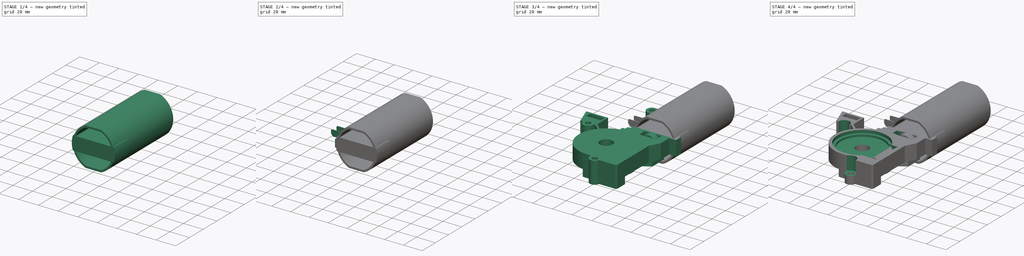
[diagram: build sequence overview — one tinted view per stage of 4, left to right]
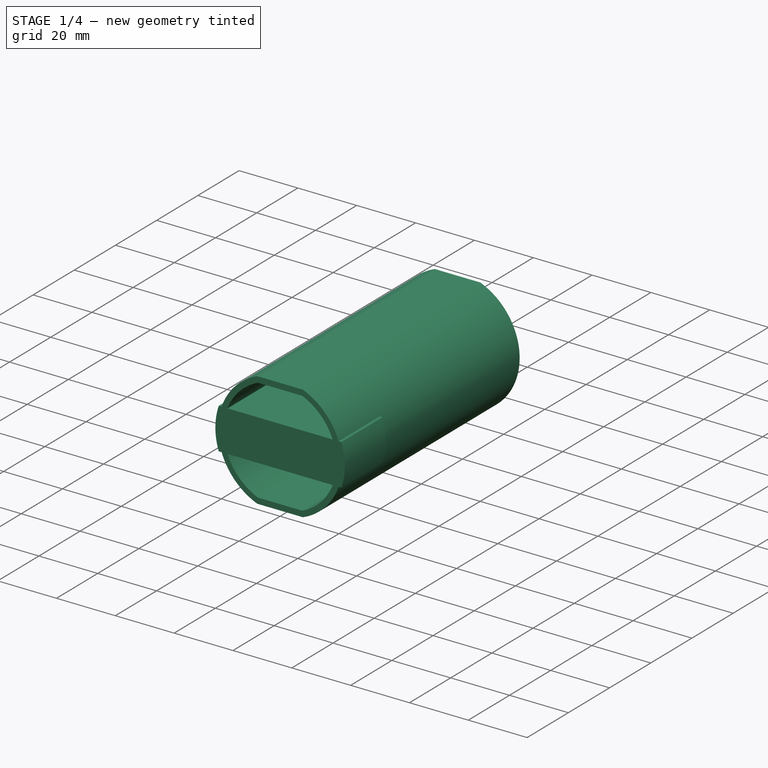
[diagram: stage 1 of 4 — iso view after this stage's code; geometry added in this stage tinted green]
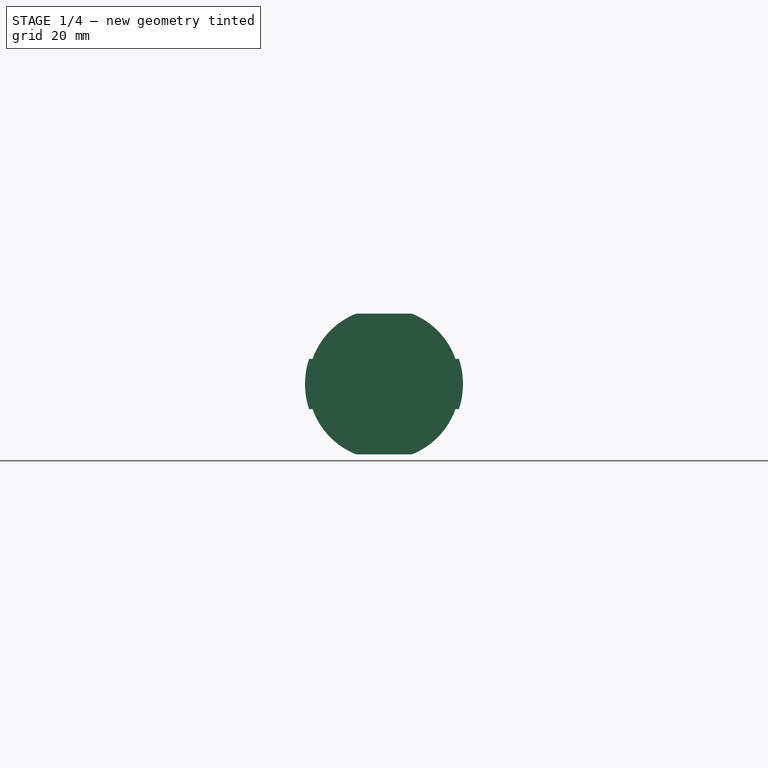
[diagram: stage 1 of 4 — front view after this stage's code; geometry added in this stage tinted green]
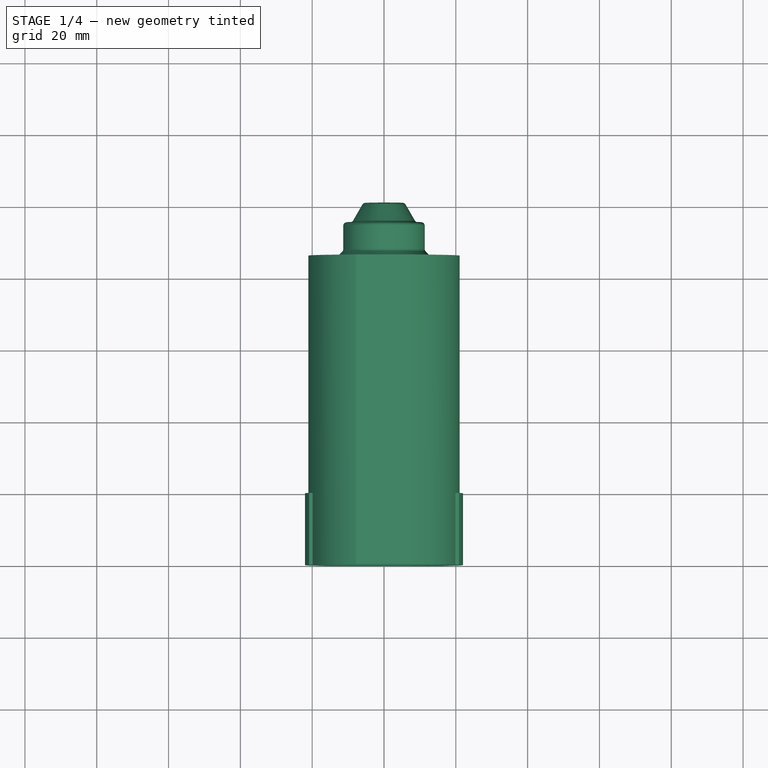
[diagram: stage 1 of 4 — top view after this stage's code; geometry added in this stage tinted green]
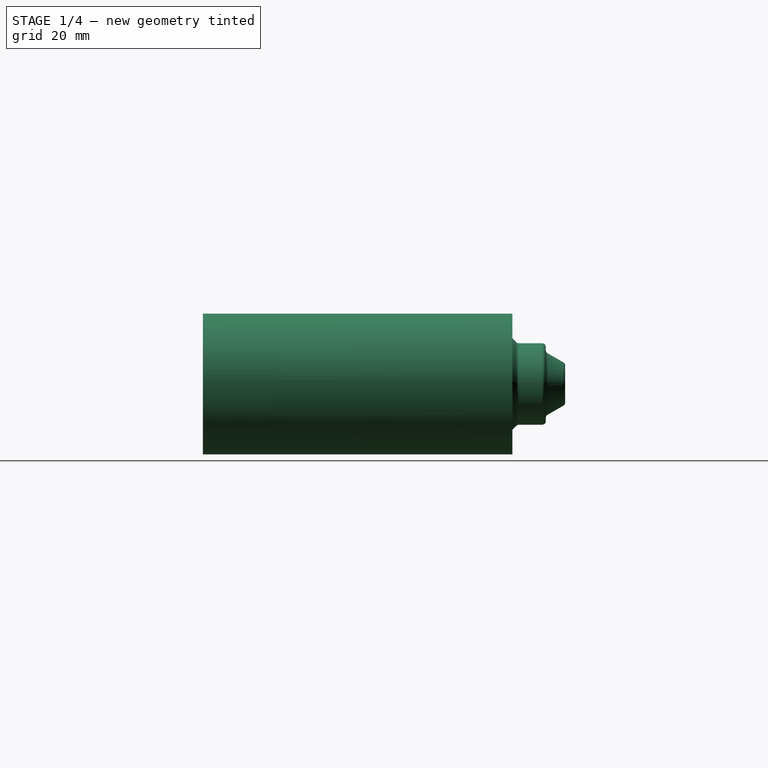
[diagram: stage 1 of 4 — right view after this stage's code; geometry added in this stage tinted green]
FCSTD DOCUMENT  (FreeCAD 0.20R28647 (Git))
Label: Motor-6N0-959-591
License: All rights reserved
LicenseURL: http://en.wikipedia.org/wiki/All_rights_reserved
objects: Sketcher::SketchObject×12, PartDesign::Pad×5, PartDesign::Pocket×5, PartDesign::Revolution×2, PartDesign::Body×2, PartDesign::LinearPattern×1
note: 39 computed .brp shape members not serialized (recipe doc carries the construction recipe); baked Part::Feature solids carry a one-line shape summary decoded from their .brp

FEATURE [Sketcher::SketchObject] Sketch
  FullyConstrained = true
  MapMode = 5
  Support = -> [XY_Plane]
  sketch-geometry (22):
    g0: LineSegment StartX=0 StartY=83.9 StartZ=0 EndX=-19.5 EndY=83.9 EndZ=0
    g1: LineSegment StartX=-19.5 StartY=83.9 StartZ=0 EndX=-19.5 EndY=84.9 EndZ=0
    g2: LineSegment StartX=-19.5 StartY=84.9 StartZ=0 EndX=-14.4713 EndY=84.9 EndZ=0
    g3: LineSegment StartX=-13.7642 StartY=85.1929 StartZ=0 EndX=-11.6429 EndY=87.3142 EndZ=0
    g4: LineSegment StartX=-11.35 StartY=88.0213 StartZ=0 EndX=-11.35 EndY=94.5 EndZ=0
    g5: LineSegment StartX=-10.35 StartY=95.5 StartZ=0 EndX=-9.44504 EndY=95.5 EndZ=0
    g6: LineSegment StartX=-8.57902 StartY=96 StartZ=0 EndX=-6.03868 EndY=100.4 EndZ=0
    g7: LineSegment StartX=-5.17265 StartY=100.9 StartZ=0 EndX=0 EndY=100.9 EndZ=0
    g8: LineSegment StartX=0 StartY=100.9 StartZ=0 EndX=0 EndY=83.9 EndZ=0
    g9: ArcOfCircle CenterX=-14.4713 CenterY=85.9 CenterZ=0 NormalX=0 NormalY=0 NormalZ=1 AngleXU=0 Radius=1 StartAngle=4.71239 EndAngle=5.49779
    g10: GeomPoint X=-14.0571 Y=84.9 Z=0
    g11: ArcOfCircle CenterX=-12.35 CenterY=88.0213 CenterZ=0 NormalX=0 NormalY=0 NormalZ=1 AngleXU=0 Radius=1 StartAngle=5.49779 EndAngle=6.28319
    g12: GeomPoint X=-11.35 Y=87.6071 Z=0
    g13: ArcOfCircle CenterX=-10.35 CenterY=94.5 CenterZ=0 NormalX=0 NormalY=0 NormalZ=1 AngleXU=0 Radius=1 StartAngle=1.5708 EndAngle=3.14159
    g14: GeomPoint X=-11.35 Y=95.5 Z=0
    g15: ArcOfCircle CenterX=-9.44504 CenterY=96.5 CenterZ=0 NormalX=0 NormalY=0 NormalZ=1 AngleXU=0 Radius=1 StartAngle=4.71239 EndAngle=5.75959
    g16: GeomPoint X=-8.86769 Y=95.5 Z=0
    g17: ArcOfCircle CenterX=-5.17265 CenterY=99.9 CenterZ=0 NormalX=0 NormalY=0 NormalZ=1 AngleXU=0 Radius=1 StartAngle=1.5708 EndAngle=2.61799
    g18: GeomPoint X=-5.75 Y=100.9 Z=0
    g19: GeomPoint X=19.5 Y=84.9 Z=0
    g20: GeomPoint X=11.35 Y=95.5 Z=0
    g21: GeomPoint X=5.75 Y=100.9 Z=0
  constraints (50):
    c: PointOnObject(g0,g-2)
    c: Horizontal(g0)
    c: Coincident(g0,g1)
    c: Vertical(g1)
    c: Coincident(g1,g2)
    c: Vertical(g4)
    c: Horizontal(g5)
    c: PointOnObject(g7,g-2)
    c: Horizontal(g7)
    c: Coincident(g7,g8)
    c: Coincident(g8,g0)
    c: Angle(g3) = 0.785398
    c: Angle(g6) = 1.0472
    c: Tangent(g2,g9) = -1.5708
    c: Tangent(g3,g9) = -1.5708
    c: PointOnObject(g12,g3)
    c: PointOnObject(g12,g4)
    c: Tangent(g3,g11) = -1.5708
    c: Tangent(g4,g11) = -1.5708
    c: PointOnObject(g14,g4)
    c: PointOnObject(g14,g5)
    c: Tangent(g4,g13) = 1.5708
    c: Tangent(g5,g13) = 1.5708
    c: PointOnObject(g16,g5)
    c: PointOnObject(g16,g6)
    c: Tangent(g5,g15) = -1.5708
    c: Tangent(g6,g15) = -1.5708
    c: PointOnObject(g18,g6)
    c: PointOnObject(g18,g7)
    c: Tangent(g6,g17) = 1.5708
    c: Tangent(g7,g17) = 1.5708
    c: Equal(g17,g15)
    c: Equal(g15,g13)
    c: Equal(g13,g11)
    c: Equal(g11,g9)
    c: Diameter(g13) = 2
    c: Symmetric(g21,g18,g-2)
    c: Symmetric(g14,g20,g-2)
    c: Symmetric(g19,g1,g-2)
    c: DistanceX(g1,g19) = 39
    c: DistanceX(g14,g20) = 22.7
    c: DistanceX(g18,g21) = 11.5
    c: DistanceY(g20,g21) = 5.4
    c: Distance(g9,g11) = 3
    c: DistanceY(g1,g1) = 1
    c: Horizontal(g2)
    c: PointOnObject(g10,g2)
    c: PointOnObject(g10,g3)
    c: DistanceY(g19,g20) = 10.6
    c: DistanceY(g19) = 84.9
FEATURE [PartDesign::Revolution] Revolution  label="Cap"
  Angle = 360
  Axis = (0,1,0)
  Base = (0,0,0)
  Profile = -> Sketch
  ReferenceAxis = -> Sketch [V_Axis]
FEATURE [Sketcher::SketchObject] Sketch001
  FullyConstrained = true
  MapMode = 5
  Placement = pos=(0,0,0) rot=(1,0,0;1.5708rad)
  Support = -> [XZ_Plane]
  sketch-geometry (8):
    g0: ArcOfCircle CenterX=0 CenterY=0 CenterZ=0 NormalX=0 NormalY=0 NormalZ=1 AngleXU=0 Radius=19.2 StartAngle=1.97537 EndAngle=4.30782
    g1: ArcOfCircle CenterX=0 CenterY=0 CenterZ=0 NormalX=0 NormalY=0 NormalZ=1 AngleXU=0 Radius=21.075 StartAngle=1.94715 EndAngle=4.33604
    g2: LineSegment StartX=-7.55761 StartY=17.65 StartZ=0 EndX=7.55761 EndY=17.65 EndZ=0
    g3: LineSegment StartX=-7.55761 StartY=-17.65 StartZ=0 EndX=7.55761 EndY=-17.65 EndZ=0
    g4: LineSegment StartX=-7.74568 StartY=-19.6 StartZ=0 EndX=7.74568 EndY=-19.6 EndZ=0
    g5: LineSegment StartX=-7.74568 StartY=19.6 StartZ=0 EndX=7.74568 EndY=19.6 EndZ=0
    g6: ArcOfCircle CenterX=0 CenterY=0 CenterZ=0 NormalX=0 NormalY=0 NormalZ=1 AngleXU=0 Radius=21.075 StartAngle=5.08874 EndAngle=7.47763
    g7: ArcOfCircle CenterX=0 CenterY=0 CenterZ=0 NormalX=0 NormalY=0 NormalZ=1 AngleXU=0 Radius=19.2 StartAngle=5.11696 EndAngle=7.44941
  constraints (24):
    c: Coincident(g0,g-1)
    c: Coincident(g1,g0)
    c: Horizontal(g2)
    c: Horizontal(g3)
    c: Horizontal(g4)
    c: Horizontal(g5)
    c: Equal(g5,g4)
    c: Equal(g3,g2)
    c: Coincident(g6,g5)
    c: Coincident(g1,g5)
    c: Coincident(g7,g2)
    c: Coincident(g0,g2)
    c: Equal(g1,g6)
    c: Coincident(g1,g4)
    c: Coincident(g6,g4)
    c: Coincident(g1,g6)
    c: Equal(g0,g7)
    c: Coincident(g0,g3)
    c: Coincident(g7,g3)
    c: Coincident(g0,g7)
    c: DistanceY(g2,g5) = 1.95
    c: Diameter(g6) = 42.15
    c: Diameter(g7) = 38.4
    c: DistanceY(g4,g5) = 39.2
FEATURE [Sketcher::SketchObject] Sketch002
  FullyConstrained = true
  MapMode = 5
  Placement = pos=(0,0,0) rot=(1,0,0;1.5708rad)
  Support = -> [XZ_Plane]
  sketch-geometry (4):
    g0: ArcOfCircle CenterX=0 CenterY=0 CenterZ=0 NormalX=0 NormalY=0 NormalZ=1 AngleXU=0 Radius=22 StartAngle=2.81778 EndAngle=3.4654
    g1: LineSegment StartX=-20.8567 StartY=7 StartZ=0 EndX=20.8567 EndY=7 EndZ=0
    g2: LineSegment StartX=-20.8567 StartY=-7 StartZ=0 EndX=20.8567 EndY=-7 EndZ=0
    g3: ArcOfCircle CenterX=0 CenterY=0 CenterZ=0 NormalX=0 NormalY=0 NormalZ=1 AngleXU=0 Radius=22 StartAngle=5.95937 EndAngle=6.607
  constraints (12):
    c: Coincident(g0,g-1)
    c: Horizontal(g1)
    c: Horizontal(g2)
    c: Coincident(g3,g1)
    c: Coincident(g0,g1)
    c: Equal(g0,g3)
    c: Coincident(g0,g2)
    c: Coincident(g3,g2)
    c: Coincident(g0,g3)
    c: Symmetric(g2,g1,g-1)
    c: DistanceY(g2,g1) = 14
    c: Diameter(g3) = 44
FEATURE [Sketcher::SketchObject] Sketch003
  FullyConstrained = true
  MapMode = 5
  Support = -> [XY_Plane]
  sketch-geometry (4):
    g0: LineSegment StartX=-28 StartY=23.5 StartZ=0 EndX=-18 EndY=23.5 EndZ=0
    g1: LineSegment StartX=-18 StartY=23.5 StartZ=0 EndX=-18 EndY=7.5 EndZ=0
    g2: LineSegment StartX=-18 StartY=7.5 StartZ=0 EndX=-28 EndY=7.5 EndZ=0
    g3: LineSegment StartX=-28 StartY=7.5 StartZ=0 EndX=-28 EndY=23.5 EndZ=0
  constraints (12):
    c: Coincident(g0,g1)
    c: Coincident(g1,g2)
    c: Coincident(g2,g3)
    c: Coincident(g3,g0)
    c: Horizontal(g0)
    c: Horizontal(g2)
    c: Vertical(g1)
    c: Vertical(g3)
    c: DistanceY(g1) = 7.5
    c: DistanceY(g1,g1) = 16
    c: DistanceX(g2) = -28
    c: DistanceX(g2,g2) = 10
FEATURE [PartDesign::Pad] Pad  label="Hull"
  BaseFeature = -> Revolution
  Direction = (0,-1,2e-16)
  Length = 86.2
  Length2 = 10
  Profile = -> Sketch001
  ReferenceAxis = -> Sketch001 [N_Axis]
  Reversed = true
  Type = 0
FEATURE [PartDesign::Pad] Pad001  label="Brush-Covers"
  BaseFeature = -> Pad
  Direction = (0,-1,2e-16)
  Length = 20
  Length2 = 10
  Profile = -> Sketch002
  ReferenceAxis = -> Sketch002 [N_Axis]
  Reversed = true
  Type = 0
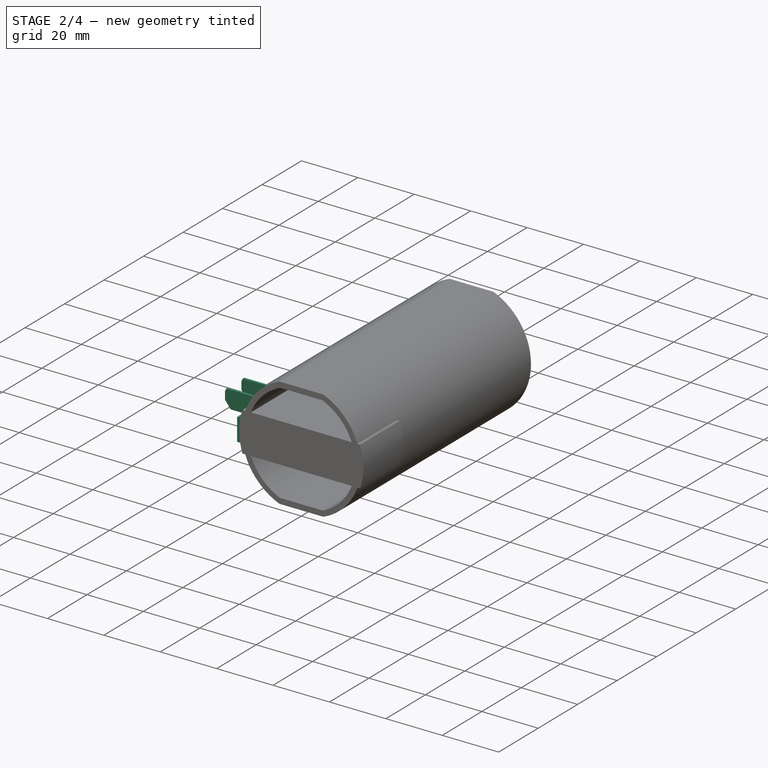
[diagram: stage 2 of 4 — iso view after this stage's code; geometry added in this stage tinted green]
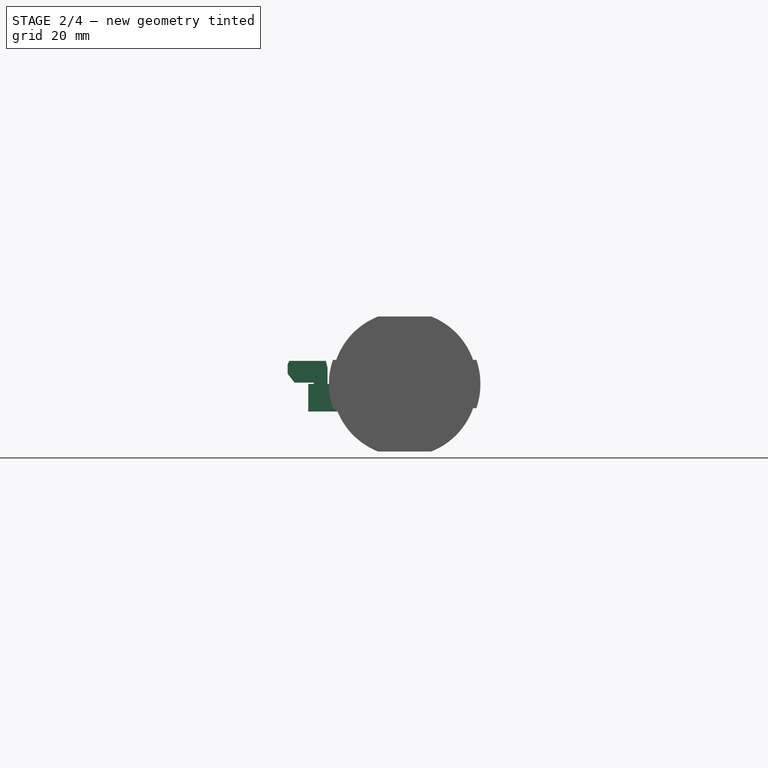
[diagram: stage 2 of 4 — front view after this stage's code; geometry added in this stage tinted green]
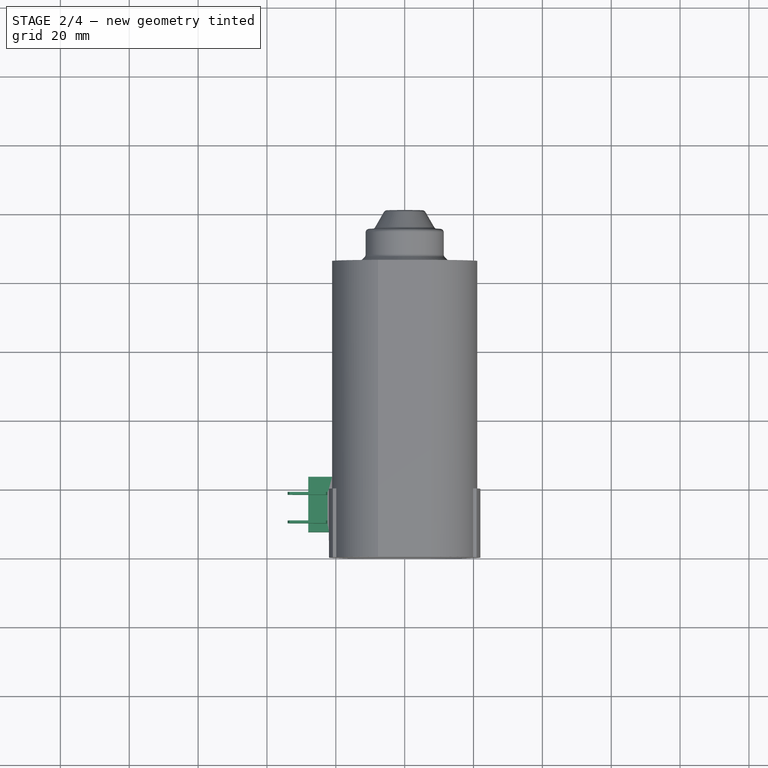
[diagram: stage 2 of 4 — top view after this stage's code; geometry added in this stage tinted green]
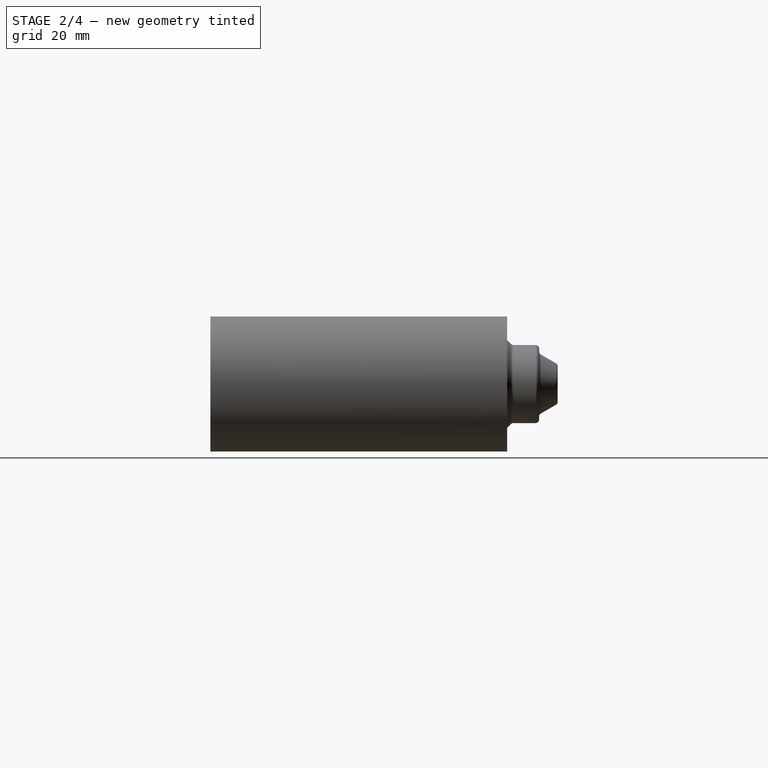
[diagram: stage 2 of 4 — right view after this stage's code; geometry added in this stage tinted green]
FEATURE [PartDesign::Pad] Pad002  label="Box"
  BaseFeature = -> Pad001
  Direction = (0,0,1)
  Length = 8
  Length2 = 10
  Profile = -> Sketch003
  ReferenceAxis = -> Sketch003 [N_Axis]
  Reversed = true
  Type = 0
FEATURE [Sketcher::SketchObject] Sketch004
  AttachmentOffset = pos=(0,0,-19) rot=(0,0,1;0rad)
  FullyConstrained = true
  MapMode = 5
  Placement = pos=(0,19,-4.2e-15) rot=(1,0,0;1.5708rad)
  Support = -> [XZ_Plane]
  sketch-geometry (12):
    g0: GeomPoint X=-34 Y=0.4 Z=0
    g1: LineSegment StartX=-22.4 StartY=-3.6 StartZ=0 EndX=-22.4 EndY=4.7 EndZ=0
    g2: LineSegment StartX=-22.4 StartY=4.7 StartZ=0 EndX=-22.9 EndY=6.7 EndZ=0
    g3: LineSegment StartX=-22.9 StartY=6.7 StartZ=0 EndX=-33.5 EndY=6.7 EndZ=0
    g4: LineSegment StartX=-33.5 StartY=6.7 StartZ=0 EndX=-34 EndY=5.7 EndZ=0
    g5: LineSegment StartX=-34 StartY=5.7 StartZ=0 EndX=-34 EndY=3 EndZ=0
    g6: LineSegment StartX=-34 StartY=3 StartZ=0 EndX=-32 EndY=0.4 EndZ=0
    g7: LineSegment StartX=-32 StartY=0.4 StartZ=0 EndX=-26.4 EndY=0.4 EndZ=0
    g8: LineSegment StartX=-26.4 StartY=0.4 StartZ=0 EndX=-26.4 EndY=-3.6 EndZ=0
    g9: LineSegment StartX=-26.4 StartY=-3.6 StartZ=0 EndX=-22.4 EndY=-3.6 EndZ=0
    g10: GeomPoint X=-34 Y=6.7 Z=0
    g11: GeomPoint X=-22.4 Y=6.7 Z=0
  constraints (33):
    c: Vertical(g1)
    c: Coincident(g1,g2)
    c: Coincident(g2,g3)
    c: Horizontal(g3)
    c: Coincident(g3,g4)
    c: Coincident(g4,g5)
    c: Vertical(g5)
    c: Coincident(g5,g6)
    c: Coincident(g6,g7)
    c: Horizontal(g7)
    c: Coincident(g7,g8)
    c: Vertical(g8)
    c: Coincident(g8,g9)
    c: Coincident(g9,g1)
    c: Horizontal(g9)
    c: PointOnObject(g11,g3)
    c: PointOnObject(g11,g1)
    c: PointOnObject(g10,g3)
    c: PointOnObject(g10,g5)
    c: PointOnObject(g0,g5)
    c: PointOnObject(g0,g7)
    c: DistanceX(g10,g11) = 11.6
    c: DistanceY(g0,g10) = 6.3
    c: DistanceX(g2,g11) = 0.5
    c: DistanceY(g1,g11) = 2
    c: DistanceX(g10,g3) = 0.5
    c: DistanceY(g4,g10) = 1
    c: DistanceX(g0,g6) = 2
    c: DistanceY(g5) = 3
    c: DistanceX(g10) = -34
    c: DistanceY(g10) = 6.7
    c: DistanceX(g9,g9) = 4
    c: Equal(g9,g8)
FEATURE [PartDesign::Pad] Pad003  label="Tab"
  BaseFeature = -> Pad002
  Direction = (0,-1,2e-16)
  Length = 0.8
  Length2 = 10
  Profile = -> Sketch004
  ReferenceAxis = -> Sketch004 [N_Axis]
  Type = 0
FEATURE [PartDesign::LinearPattern] LinearPattern  label="Connectors"
  BaseFeature = -> Pad003
  Direction = -> Sketch004 [N_Axis]
  Length = 8.3
  Occurrences = 2
  Originals = -> [Pad003]
  Overlap = 0
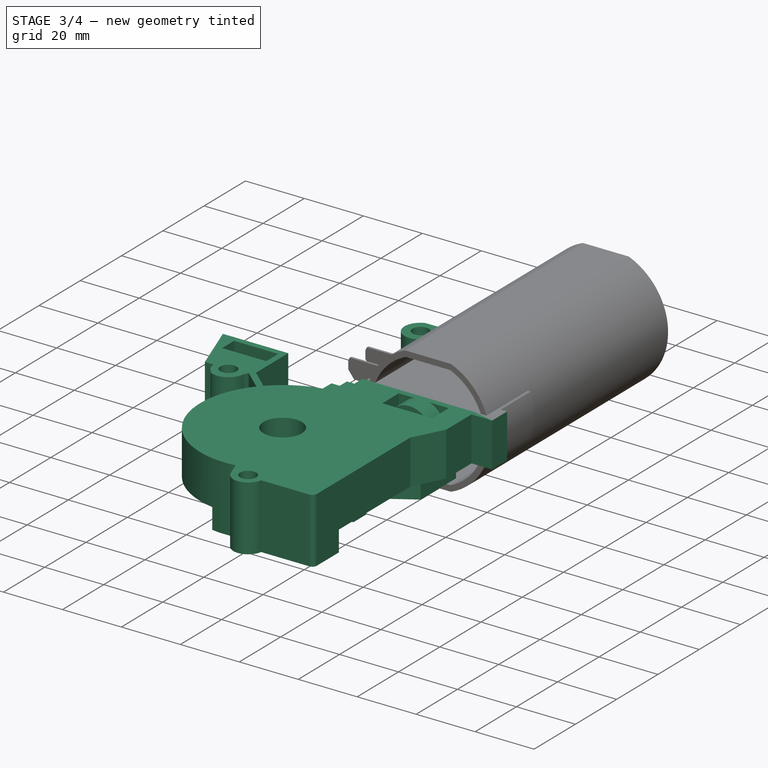
[diagram: stage 3 of 4 — iso view after this stage's code; geometry added in this stage tinted green]
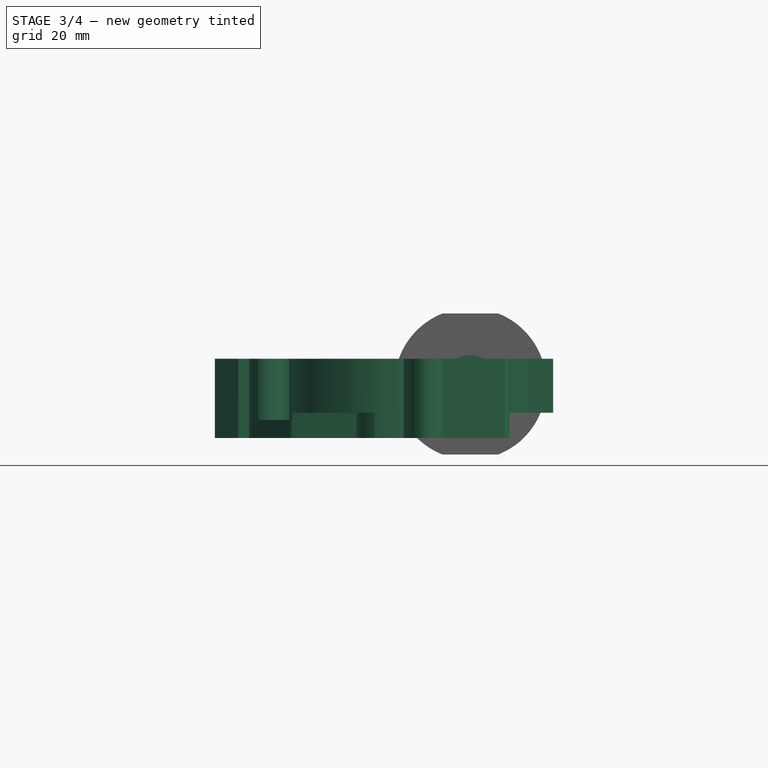
[diagram: stage 3 of 4 — front view after this stage's code; geometry added in this stage tinted green]
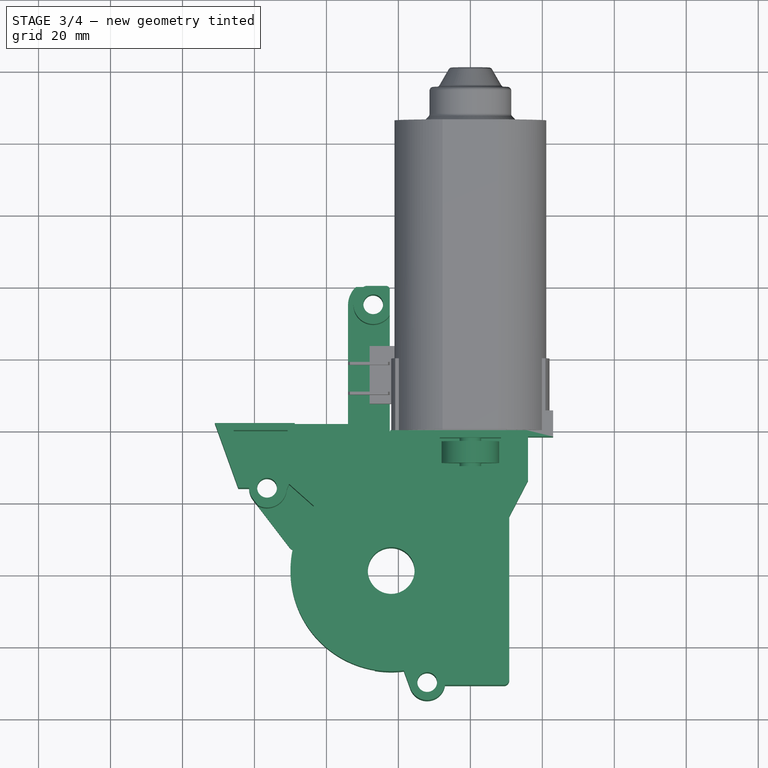
[diagram: stage 3 of 4 — top view after this stage's code; geometry added in this stage tinted green]
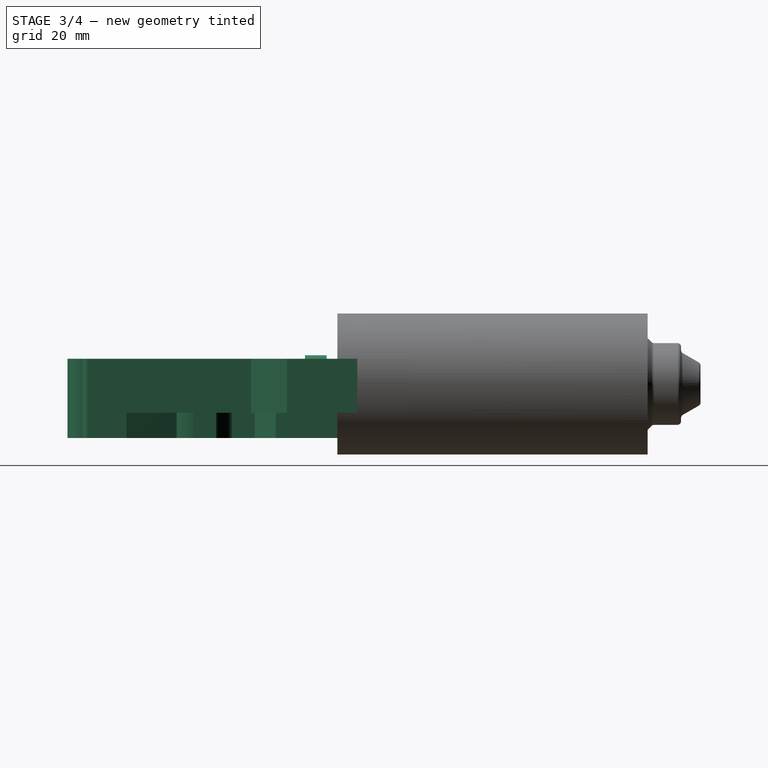
[diagram: stage 3 of 4 — right view after this stage's code; geometry added in this stage tinted green]
FEATURE [Sketcher::SketchObject] Sketch005
  FullyConstrained = true
  MapMode = 5
  Support = -> [XY_Plane001]
  sketch-geometry (33):
    g0: LineSegment StartX=15.7 StartY=0 StartZ=0 EndX=15.7 EndY=5.5 EndZ=0
    g1: LineSegment StartX=15.7 StartY=5.5 StartZ=0 EndX=23 EndY=5.5 EndZ=0
    g2: LineSegment StartX=23 StartY=5.5 StartZ=0 EndX=23 EndY=-1.8 EndZ=0
    g3: LineSegment StartX=23 StartY=-1.8 StartZ=0 EndX=16 EndY=-1.8 EndZ=0
    g4: LineSegment StartX=16 StartY=-1.8 StartZ=0 EndX=16 EndY=-14 EndZ=0
    g5: LineSegment StartX=16 StartY=-14 StartZ=0 EndX=10.8 EndY=-24 EndZ=0
    g6: LineSegment StartX=10.8 StartY=-24 StartZ=0 EndX=10.8 EndY=-69.3 EndZ=0
    g7: LineSegment StartX=9.3 StartY=-70.8 StartZ=0 EndX=-7.06441 EndY=-70.8 EndZ=0
    g8: ArcOfCircle CenterX=-22 CenterY=-39 CenterZ=0 NormalX=0 NormalY=0 NormalZ=1 AngleXU=0 Radius=28 StartAngle=2.92563 EndAngle=4.83772
    g9: LineSegment StartX=-50.1793 StartY=-32.4569 StartZ=0 EndX=-60.4674 EndY=-19.0429 EndZ=0
    g10: LineSegment StartX=-64.5 StartY=-16 StartZ=0 EndX=-71 EndY=2 EndZ=0
    g11: LineSegment StartX=-71 StartY=2 StartZ=0 EndX=-34 EndY=2 EndZ=0
    g12: LineSegment StartX=-34 StartY=2 StartZ=0 EndX=-34 EndY=35 EndZ=0
    g13: LineSegment StartX=-22.4 StartY=39.1 StartZ=0 EndX=-22.4 EndY=0 EndZ=0
    g14: LineSegment StartX=-22.4 StartY=0 StartZ=0 EndX=15.7 EndY=0 EndZ=0
    g15: GeomPoint X=-27 Y=35 Z=0
    g16: GeomPoint X=-56.5 Y=-16 Z=0
    g17: GeomPoint X=-12 Y=-70 Z=0
    g18: ArcOfCircle CenterX=-27 CenterY=35 CenterZ=0 NormalX=0 NormalY=0 NormalZ=1 AngleXU=0 Radius=7 StartAngle=2.32536 EndAngle=3.14159
    g19: LineSegment StartX=-31.7948 StartY=40.1 StartZ=0 EndX=-23.4 EndY=40.1 EndZ=0
    g20: ArcOfCircle CenterX=-23.4 CenterY=39.1 CenterZ=0 NormalX=0 NormalY=0 NormalZ=1 AngleXU=0 Radius=1 StartAngle=-2.7e-15 EndAngle=1.5708
    g21: GeomPoint X=-22.4 Y=40.1 Z=0
    g22: Circle CenterX=-27 CenterY=35 CenterZ=0 NormalX=0 NormalY=0 NormalZ=1 AngleXU=0 Radius=2.75
    g23: Circle CenterX=-56.5 CenterY=-16 CenterZ=0 NormalX=0 NormalY=0 NormalZ=1 AngleXU=0 Radius=2.75
    g24: Circle CenterX=-12 CenterY=-70 CenterZ=0 NormalX=0 NormalY=0 NormalZ=1 AngleXU=0 Radius=2.75
    g25: ArcOfCircle CenterX=-12 CenterY=-70 CenterZ=0 NormalX=0 NormalY=0 NormalZ=1 AngleXU=0 Radius=5 StartAngle=3.49196 EndAngle=6.12249
    g26: ArcOfCircle CenterX=9.3 CenterY=-69.3 CenterZ=0 NormalX=0 NormalY=0 NormalZ=1 AngleXU=0 Radius=1.5 StartAngle=4.71239 EndAngle=6.28319
    g27: GeomPoint X=10.8 Y=-70.8 Z=0
    g28: LineSegment StartX=-16.6962 StartY=-71.7162 StartZ=0 EndX=-18.5 EndY=-66.7804 EndZ=0
    g29: Circle CenterX=-22 CenterY=-39 CenterZ=0 NormalX=0 NormalY=0 NormalZ=1 AngleXU=0 Radius=6.5
    g30: ArcOfCircle CenterX=-56.5 CenterY=-16 CenterZ=0 NormalX=0 NormalY=0 NormalZ=1 AngleXU=0 Radius=5 StartAngle=3.14159 EndAngle=3.79587
    g31: LineSegment StartX=-61.5 StartY=-16 StartZ=0 EndX=-64.5 EndY=-16 EndZ=0
    g32: ArcOfCircle CenterX=-48.989 CenterY=-31.544 CenterZ=0 NormalX=0 NormalY=0 NormalZ=1 AngleXU=0 Radius=1.5 StartAngle=3.79587 EndAngle=4.46964
  constraints (88):
    c: PointOnObject(g0,g-1)
    c: Vertical(g0)
    c: Coincident(g0,g1)
    c: Horizontal(g1)
    c: Coincident(g1,g2)
    c: Vertical(g2)
    c: Coincident(g2,g3)
    c: Horizontal(g3)
    c: Coincident(g3,g4)
    c: Vertical(g4)
    c: Coincident(g4,g5)
    c: Coincident(g5,g6)
    c: Vertical(g6)
    c: Horizontal(g7)
    c: Coincident(g10,g11)
    c: Horizontal(g11)
    c: Coincident(g11,g12)
    c: Vertical(g12)
    c: PointOnObject(g13,g-1)
    c: Vertical(g13)
    c: Coincident(g13,g14)
    c: Coincident(g14,g0)
    c: DistanceX(g15) = -27
    c: DistanceY(g15) = 35
    c: Coincident(g18,g15)
    c: Coincident(g19,g18)
    c: Horizontal(g19)
    c: PointOnObject(g21,g13)
    c: PointOnObject(g21,g19)
    c: Tangent(g13,g20) = 1.5708
    c: Tangent(g19,g20) = 1.5708
    c: Coincident(g22,g18)
    c: Diameter(g22) = 5.5
    c: Diameter(g20) = 2
    c: DistanceX(g12,g13) = 11.6
    c: DistanceX(g12) = -34
    c: DistanceY(g18,g18) = 5.1
    c: DistanceY(g11) = 2
    c: Tangent(g18,g12) = 1.5708
    c: DistanceX(g16) = -56.5
    c: DistanceY(g16) = -16
    c: Distance(g16,g18) = 58.9173
    c: Coincident(g23,g16)
    c: Equal(g23,g22)
    c: DistanceX(g17) = -12
    c: Coincident(g24,g17)
    c: Equal(g24,g23)
    c: Coincident(g25,g24)
    c: Coincident(g25,g7)
    c: Distance(g24,g23) = 69.9732
    c: DistanceY(g24) = -70
    c: DistanceY(g8) = -39
    c: Diameter(g25) = 10
    c: DistanceY(g27) = -70.8
    c: DistanceX(g27) = 10.8
    c: PointOnObject(g27,g6)
    c: PointOnObject(g27,g7)
    c: Tangent(g6,g26) = 1.5708
    c: Tangent(g7,g26) = 1.5708
    c: Diameter(g26) = 3
    c: DistanceY(g5) = -24
    c: DistanceY(g5,g4) = 10
    c: DistanceX(g4) = 16
    c: DistanceX(g8) = -22
    c: Coincident(g28,g8)
    c: Tangent(g28,g25) = 1.5708
    c: Diameter(g8) = 56
    c: Coincident(g29,g8)
    c: Diameter(g29) = 13
    c: DistanceX(g10) = -71
    c: Coincident(g30,g23)
    c: Equal(g25,g30)
    c: Coincident(g31,g30)
    c: Coincident(g31,g10)
    c: PointOnObject(g23,g31)
    c: Horizontal(g31)
    c: DistanceX(g31,g31) = 3
    c: Coincident(g32,g8)
    c: Tangent(g32,g9) = 1.5708
    c: Tangent(g9,g30) = 1.5708
    c: Equal(g26,g32)
    c: PointOnObject(g32,g8)
    c: DistanceY(g8) = -33
    c: DistanceX(g8) = -18.5
    c: DistanceY(g2,g2) = 7.3
    c: Equal(g2,g1)
    c: DistanceX(g1) = 23
    c: DistanceY(g2) = -1.8
FEATURE [PartDesign::Pad] Pad004
  Direction = (0,0,1)
  Length = 7
  Length2 = 15
  Profile = -> Sketch005
  ReferenceAxis = -> Sketch005 [N_Axis]
  Type = 4
FEATURE [Sketcher::SketchObject] Sketch006
  AttachmentOffset = pos=(0,0,-8) rot=(0,0,1;0rad)
  ExternalGeometry = -> [Pad004]
  FullyConstrained = false
  MapMode = 5
  Placement = pos=(0,0,-8) rot=(0,0,1;0rad)
  Support = -> [XY_Plane001]
  sketch-geometry (40):
    g0: LineSegment StartX=9.5 StartY=7.19635 StartZ=0 EndX=9.5 EndY=-17.1308 EndZ=0
    g1: LineSegment StartX=9.5 StartY=-17.1308 StartZ=0 EndX=0 EndY=-23 EndZ=0
    g2: LineSegment StartX=0 StartY=-23 StartZ=0 EndX=-9.5 EndY=-17.1308 EndZ=0
    g3: LineSegment StartX=-9.5 StartY=-17.1308 StartZ=0 EndX=-9.5 EndY=0 EndZ=0
    g4: LineSegment StartX=-9.5 StartY=0 StartZ=0 EndX=-22 EndY=0 EndZ=0
    g5: LineSegment StartX=-22 StartY=0 StartZ=0 EndX=-22 EndY=-7.81023 EndZ=0
    g6: LineSegment StartX=-21 StartY=-15.3586 StartZ=0 EndX=-21 EndY=-29.402 EndZ=0
    g7: ArcOfCircle CenterX=-23.1483 CenterY=-11.8028 CenterZ=0 NormalX=0 NormalY=0 NormalZ=1 AngleXU=0 Radius=4.1544 StartAngle=5.25588 EndAngle=7.57392
    g8: ArcOfCircle CenterX=-22 CenterY=-39 CenterZ=0 NormalX=0 NormalY=0 NormalZ=1 AngleXU=0 Radius=9.65 StartAngle=0.0997359 EndAngle=1.46698
    g9: ArcOfCircle CenterX=-22 CenterY=-39 CenterZ=0 NormalX=0 NormalY=0 NormalZ=1 AngleXU=0 Radius=9.65 StartAngle=5.65237 EndAngle=6.17529
    g10: ArcOfCircle CenterX=-22 CenterY=-39 CenterZ=0 NormalX=0 NormalY=0 NormalZ=1 AngleXU=0 Radius=9.65 StartAngle=4.63073 EndAngle=5.4194
    g11: ArcOfCircle CenterX=-22 CenterY=-39 CenterZ=0 NormalX=0 NormalY=0 NormalZ=1 AngleXU=0 Radius=9.65 StartAngle=2.99879 EndAngle=4.38504
    g12: ArcOfCircle CenterX=-22 CenterY=-39 CenterZ=0 NormalX=0 NormalY=0 NormalZ=1 AngleXU=0 Radius=9.65 StartAngle=1.67461 EndAngle=2.45749
    g13: LineSegment StartX=-23 StartY=-29.402 StartZ=0 EndX=-23 EndY=-16.3237 EndZ=0
    g14: ArcOfCircle CenterX=-22 CenterY=-39 CenterZ=0 NormalX=0 NormalY=0 NormalZ=1 AngleXU=0 Radius=22.6983 StartAngle=1.61487 EndAngle=2.45749
    g15: LineSegment StartX=-39.5909 StartY=-24.6552 StartZ=0 EndX=-29.4786 EndY=-32.9014 EndZ=0
    g16: LineSegment StartX=-12.398 StartY=-38.0391 StartZ=0 EndX=-3.26406 EndY=-38.0391 EndZ=0
    g17: LineSegment StartX=-3.26406 StartY=-38.0391 StartZ=0 EndX=-3.26406 EndY=-33.6777 EndZ=0
    g18: LineSegment StartX=-3.26406 StartY=-33.6777 StartZ=0 EndX=2.71611 EndY=-33.6777 EndZ=0
    g19: LineSegment StartX=2.71611 StartY=-33.6777 StartZ=0 EndX=2.71611 EndY=-40.0391 EndZ=0
    g20: LineSegment StartX=2.71611 StartY=-40.0391 StartZ=0 EndX=-12.4061 EndY=-40.0391 EndZ=0
    g21: LineSegment StartX=-14.2072 StartY=-44.6916 StartZ=0 EndX=-9.0718 EndY=-58.6 EndZ=0
    g22: LineSegment StartX=-9.0718 StartY=-58.6 StartZ=0 EndX=22.8258 EndY=-58.6 EndZ=0
    g23: LineSegment StartX=22.8258 StartY=-58.6 StartZ=0 EndX=40.3556 EndY=7.19635 EndZ=0
    g24: LineSegment StartX=40.3556 StartY=7.19635 StartZ=0 EndX=9.5 EndY=7.19635 EndZ=0
    g25: LineSegment StartX=-15.7317 StartY=-46.3369 StartZ=0 EndX=-9.55467 EndY=-63.0663 EndZ=0
    g26: LineSegment StartX=-9.55467 StartY=-63.0663 StartZ=0 EndX=-16.424 EndY=-65.6027 EndZ=0
    g27: LineSegment StartX=-16.424 StartY=-65.6027 StartZ=0 EndX=-22.7871 EndY=-48.6178 EndZ=0
    g28: LineSegment StartX=-26.5605 StartY=-69.5245 StartZ=0 EndX=-26.5605 EndY=-61.0779 EndZ=0
    g29: LineSegment StartX=-26.5605 StartY=-61.0779 StartZ=0 EndX=-20.2548 EndY=-61.0779 EndZ=0
    g30: LineSegment StartX=-20.2548 StartY=-61.0779 StartZ=0 EndX=-25.1028 EndY=-48.1376 EndZ=0
    g31: LineSegment StartX=-26.5605 StartY=-69.5245 StartZ=0 EndX=-53.4979 EndY=-69.5245 EndZ=0
    g32: LineSegment StartX=-53.4979 StartY=-69.5245 StartZ=0 EndX=-53.4979 EndY=-32.5525 EndZ=0
    g33: LineSegment StartX=-53.4979 StartY=-32.5525 StartZ=0 EndX=-31.5518 EndY=-37.6267 EndZ=0
    g34: ArcOfCircle CenterX=-22 CenterY=-39 CenterZ=0 NormalX=0 NormalY=0 NormalZ=1 AngleXU=0 Radius=22.6983 StartAngle=2.54563 EndAngle=2.8621
    g35: ArcOfCircle CenterX=-22 CenterY=-39 CenterZ=0 NormalX=0 NormalY=0 NormalZ=1 AngleXU=0 Radius=9.65 StartAngle=2.66605 EndAngle=2.79117
    g36: LineSegment StartX=-30.5793 StartY=-34.582 StartZ=0 EndX=-40.7853 EndY=-26.2593 EndZ=0
    g37: LineSegment StartX=-31.0635 StartY=-35.6872 StartZ=0 EndX=-43.8175 EndY=-32.7383 EndZ=0
    g38: LineSegment StartX=-20.2548 StartY=-61.0779 StartZ=0 EndX=-18.3786 EndY=-60.3851 EndZ=0
    g39: LineSegment StartX=-10.948 StartY=-59.2927 StartZ=0 EndX=-9.0718 EndY=-58.6 EndZ=0
  constraints (96):
    c: Vertical(g0)
    c: Coincident(g0,g1)
    c: PointOnObject(g1,g-2)
    c: Coincident(g1,g2)
    c: Coincident(g2,g3)
    c: PointOnObject(g3,g-1)
    c: Vertical(g3)
    c: Coincident(g3,g4)
    c: PointOnObject(g4,g-1)
    c: Coincident(g4,g5)
    c: Vertical(g5)
    c: Vertical(g6)
    c: Coincident(g7,g5)
    c: Coincident(g7,g6)
    c: Coincident(g8,g6)
    c: Coincident(g9,g8)
    c: Coincident(g10,g8)
    c: Coincident(g11,g8)
    c: Coincident(g12,g8)
    c: Coincident(g8,g-3)
    c: Equal(g8,g9)
    c: Equal(g9,g10)
    c: Equal(g10,g11)
    c: Equal(g11,g12)
    c: Diameter(g8) = 19.3
    c: PointOnObject(g8,g5)
    c: DistanceX(g8,g6) = 1
    c: DistanceX(g12,g8) = 1
    c: Coincident(g13,g12)
    c: Vertical(g13)
    c: Coincident(g14,g8)
    c: Coincident(g14,g13)
    c: Coincident(g15,g14)
    c: Coincident(g15,g12)
    c: PointOnObject(g8,g15)
    c: Coincident(g8,g16)
    c: Coincident(g16,g17)
    c: Vertical(g17)
    c: Coincident(g17,g18)
    c: Horizontal(g18)
    c: Coincident(g18,g19)
    c: Vertical(g19)
    c: Coincident(g19,g20)
    c: Horizontal(g20)
    c: Coincident(g9,g20)
    c: Coincident(g9,g21)
    c: Coincident(g21,g22)
    c: Coincident(g22,g23)
    c: Coincident(g23,g24)
    c: Horizontal(g24)
    c: Horizontal(g22)
    c: Coincident(g0,g24)
    c: Horizontal(g16)
    c: DistanceY(g22) = -58.6
    c: Coincident(g25,g26)
    c: Coincident(g26,g27)
    c: Coincident(g27,g10)
    c: Coincident(g25,g10)
    c: Coincident(g28,g29)
    c: Coincident(g29,g30)
    c: Coincident(g30,g11)
    c: Horizontal(g29)
    c: Vertical(g28)
    c: Coincident(g28,g31)
    c: Horizontal(g31)
    c: Coincident(g31,g32)
    c: Vertical(g32)
    c: Coincident(g32,g33)
    c: Coincident(g33,g11)
    c: Coincident(g34,g8)
    c: Coincident(g35,g8)
    c: Coincident(g36,g35)
    c: Coincident(g36,g34)
    c: Coincident(g37,g35)
    c: Coincident(g37,g34)
    c: Parallel(g33,g37)
    c: Parallel(g36,g15)
    c: Equal(g34,g14)
    c: Equal(g35,g12)
    c: Parallel(g21,g25)
    c: Parallel(g27,g30)
    c: Distance(g34,g14) = 2
    c: Distance(g35,g11) = 2
    c: Distance(g8,g9) = 2
    c: Perpendicular(g26,g25)
    c: Coincident(g38,g29)
    c: PointOnObject(g38,g27)
    c: PointOnObject(g39,g25)
    c: Coincident(g39,g21)
    c: Parallel(g39,g26)
    c: Parallel(g26,g38)
    c: Equal(g39,g38)
    c: Distance(g39) = 2
    c: Symmetric(g2,g0,g-2)
    c: DistanceX(g2,g0) = 19
    c: DistanceY(g1) = -23
FEATURE [PartDesign::Pocket] Pocket  label="Botto Ribs"
  BaseFeature = -> Pad004
  Direction = (0,0,-1)
  Length = 5
  Length2 = 5
  Profile = -> Sketch006
  ReferenceAxis = -> Sketch006 [N_Axis]
  Type = 1
FEATURE [Sketcher::SketchObject] Sketch007
  AttachmentOffset = pos=(0,0,-10) rot=(0,0,1;0rad)
  ExternalGeometry = -> [Pocket]
  FullyConstrained = false
  MapMode = 5
  Placement = pos=(0,0,-10) rot=(0,0,1;0rad)
  Support = -> [XY_Plane001]
  sketch-geometry (23):
    g0: LineSegment StartX=-65.796 StartY=0 StartZ=0 EndX=-50.796 EndY=0 EndZ=0
    g1: LineSegment StartX=-50.796 StartY=0 StartZ=0 EndX=-50.796 EndY=-5.8 EndZ=0
    g2: LineSegment StartX=-50.796 StartY=-5.8 StartZ=0 EndX=-65.796 EndY=-5.8 EndZ=0
    g3: LineSegment StartX=-65.796 StartY=-5.8 StartZ=0 EndX=-65.796 EndY=0 EndZ=0
    g4: ArcOfCircle CenterX=-27 CenterY=35 CenterZ=0 NormalX=0 NormalY=0 NormalZ=1 AngleXU=0 Radius=5.5 StartAngle=1.61894 EndAngle=5.75132
    g5: ArcOfCircle CenterX=-56.5 CenterY=-16 CenterZ=0 NormalX=0 NormalY=0 NormalZ=1 AngleXU=0 Radius=5.5 StartAngle=4.0136 EndAngle=6.19528
    g6: ArcOfCircle CenterX=-22 CenterY=-39 CenterZ=0 NormalX=0 NormalY=0 NormalZ=1 AngleXU=0 Radius=28 StartAngle=2.44548 EndAngle=2.98187
    g7: ArcOfCircle CenterX=-22 CenterY=-39 CenterZ=0 NormalX=0 NormalY=0 NormalZ=1 AngleXU=0 Radius=28 StartAngle=1.77255 EndAngle=2.37403
    g8: LineSegment StartX=-27.2647 StartY=40.4936 StartZ=0 EndX=-48.796 EndY=40.4901 EndZ=0
    g9: LineSegment StartX=-48.796 StartY=40.4901 StartZ=0 EndX=-48.796 EndY=-13.6545 EndZ=0
    g10: LineSegment StartX=-48.796 StartY=-13.6545 StartZ=0 EndX=-42.149 EndY=-19.5573 EndZ=0
    g11: LineSegment StartX=-27.6108 StartY=-11.5679 StartZ=0 EndX=-27.6108 EndY=-7.35773 EndZ=0
    g12: LineSegment StartX=-27.6108 StartY=-7.35773 StartZ=0 EndX=-24.7834 EndY=-7.35773 EndZ=0
    g13: LineSegment StartX=-24.7834 StartY=-7.35773 StartZ=0 EndX=-24.7834 EndY=-3.88051 EndZ=0
    g14: LineSegment StartX=-24.7834 StartY=-3.88051 StartZ=0 EndX=-22.2598 EndY=-3.88051 EndZ=0
    g15: LineSegment StartX=-22.2598 StartY=-3.88051 StartZ=0 EndX=-22.2598 EndY=32.2107 EndZ=0
    g16: LineSegment StartX=-43.4855 StartY=-21.0452 StartZ=0 EndX=-50.377 EndY=-14.9253 EndZ=0
    g17: LineSegment StartX=-51.0212 StartY=-16.4829 StartZ=0 EndX=-50.377 EndY=-14.9253 EndZ=0
    g18: LineSegment StartX=-60.0381 StartY=-20.2109 StartZ=0 EndX=-49.6436 EndY=-34.5468 EndZ=0
    g19: LineSegment StartX=-8.5 StartY=-2 StartZ=0 EndX=8.5 EndY=-2 EndZ=0
    g20: LineSegment StartX=8.5 StartY=-2 StartZ=0 EndX=8.5 EndY=-10 EndZ=0
    g21: LineSegment StartX=8.5 StartY=-10 StartZ=0 EndX=-8.5 EndY=-10 EndZ=0
    g22: LineSegment StartX=-8.5 StartY=-10 StartZ=0 EndX=-8.5 EndY=-2 EndZ=0
  constraints (54):
    c: Coincident(g0,g1)
    c: Coincident(g1,g2)
    c: Coincident(g2,g3)
    c: Coincident(g3,g0)
    c: Horizontal(g0)
    c: Horizontal(g2)
    c: Vertical(g1)
    c: Vertical(g3)
    c: PointOnObject(g0,g-1)
    c: DistanceX(g2,g2) = 15
    c: DistanceY(g1,g1) = 5.8
    c: Coincident(g4,g-4)
    c: Coincident(g6,g-3)
    c: Coincident(g7,g6)
    c: Equal(g5,g4)
    c: Coincident(g5,g-5)
    c: Equal(g6,g7)
    c: Diameter(g7) = 56
    c: Diameter(g5) = 11
    c: Coincident(g4,g8)
    c: Coincident(g8,g9)
    c: Coincident(g9,g10)
    c: Coincident(g10,g7)
    c: Coincident(g7,g11)
    c: Coincident(g11,g12)
    c: Coincident(g12,g13)
    c: Vertical(g13)
    c: Coincident(g13,g14)
    c: Horizontal(g14)
    c: Coincident(g14,g15)
    c: Coincident(g15,g4)
    c: Vertical(g15)
    c: Horizontal(g12)
    c: Vertical(g11)
    c: Vertical(g9)
    c: DistanceX(g1,g9) = 2
    c: Coincident(g16,g6)
    c: Parallel(g16,g10)
    c: Distance(g6,g7) = 2
    c: Coincident(g17,g5)
    c: Coincident(g17,g16)
    c: Coincident(g18,g5)
    c: Coincident(g18,g6)
    c: Coincident(g19,g20)
    c: Coincident(g20,g21)
    c: Coincident(g21,g22)
    c: Coincident(g22,g19)
    c: Horizontal(g19)
    c: Vertical(g20)
    c: Vertical(g22)
    c: Symmetric(g21,g20,g-2)
    c: DistanceX(g21,g21) = 17
    c: DistanceY(g20,g20) = 8
    c: DistanceY(g19) = -2
FEATURE [PartDesign::Pocket] Pocket001  label="Thin Arms"
  BaseFeature = -> Pocket
  Direction = (0,0,-1)
  Length = 5
  Length2 = 5
  Profile = -> Sketch007
  ReferenceAxis = -> Sketch007 [N_Axis]
  Reversed = true
  Type = 1
FEATURE [PartDesign::Body] Body001  label="Gearbox"
  Group = -> [Sketch005,Pad004,Sketch006,Pocket,Sketch007,Pocket001,Sketch008,Pocket002,Sketch009,Pocket003,Sketch010,Pocket004]
  Origin = -> Origin001
  Tip = -> Pocket004
FEATURE [Sketcher::SketchObject] Sketch011
  FullyConstrained = true
  MapMode = 5
  Support = -> [XY_Plane]
  sketch-geometry (12):
    g0: LineSegment StartX=-3 StartY=0 StartZ=0 EndX=-3 EndY=-3 EndZ=0
    g1: LineSegment StartX=-3 StartY=-3 StartZ=0 EndX=-8 EndY=-3 EndZ=0
    g2: LineSegment StartX=-8 StartY=-3 StartZ=0 EndX=-8 EndY=-9 EndZ=0
    g3: LineSegment StartX=-8 StartY=-9 StartZ=0 EndX=-3 EndY=-9 EndZ=0
    g4: LineSegment StartX=-3 StartY=-9 StartZ=0 EndX=-3 EndY=-27.5 EndZ=0
    g5: LineSegment StartX=-3 StartY=-27.5 StartZ=0 EndX=-4 EndY=-27.5 EndZ=0
    g6: LineSegment StartX=-4 StartY=-27.5 StartZ=0 EndX=-4 EndY=-52.5 EndZ=0
    g7: LineSegment StartX=-4 StartY=-52.5 StartZ=0 EndX=-3 EndY=-52.5 EndZ=0
    g8: LineSegment StartX=-3 StartY=-52.5 StartZ=0 EndX=-3 EndY=-64 EndZ=0
    g9: LineSegment StartX=-3 StartY=-64 StartZ=0 EndX=0 EndY=-64 EndZ=0
    g10: LineSegment StartX=0 StartY=-64 StartZ=0 EndX=0 EndY=0 EndZ=0
    g11: LineSegment StartX=-3 StartY=0 StartZ=0 EndX=0 EndY=0 EndZ=0
  constraints (35):
    c: PointOnObject(g0,g-1)
    c: Vertical(g0)
    c: Coincident(g0,g1)
    c: Horizontal(g1)
    c: Coincident(g1,g2)
    c: Vertical(g2)
    c: Coincident(g2,g3)
    c: Horizontal(g3)
    c: Coincident(g3,g4)
    c: Vertical(g4)
    c: Coincident(g4,g5)
    c: Coincident(g5,g6)
    c: Vertical(g6)
    c: Coincident(g6,g7)
    c: Horizontal(g7)
    c: Coincident(g7,g8)
    c: Vertical(g8)
    c: Coincident(g8,g9)
    c: PointOnObject(g9,g-2)
    c: Horizontal(g9)
    c: Coincident(g9,g10)
    c: Coincident(g10,g-1)
    c: DistanceX(g2) = -8
    c: DistanceX(g9,g9) = 3
    c: DistanceX(g6) = -4
    c: Vertical(g7,g0)
    c: Vertical(g4,g7)
    c: Horizontal(g5)
    c: DistanceY(g2,g2) = 6
    c: DistanceY(g0,g0) = 3
    c: DistanceY(g6,g6) = 25
    c: DistanceY(g10,g10) = 64
    c: DistanceY(g4) = -27.5
    c: Coincident(g11,g0)
    c: Coincident(g11,g10)
FEATURE [PartDesign::Revolution] Revolution001  label="Shaft"
  Angle = 360
  Axis = (0,1,0)
  Base = (0,0,0)
  BaseFeature = -> LinearPattern
  Profile = -> Sketch011
  ReferenceAxis = -> Sketch011 [V_Axis]
FEATURE [PartDesign::Body] Body  label="Motor"
  Group = -> [Sketch,Revolution,Sketch001,Sketch002,Sketch003,Pad,Pad001,Pad002,Sketch004,Pad003,LinearPattern,Sketch011,Revolution001]
  Origin = -> Origin
  Tip = -> Revolution001
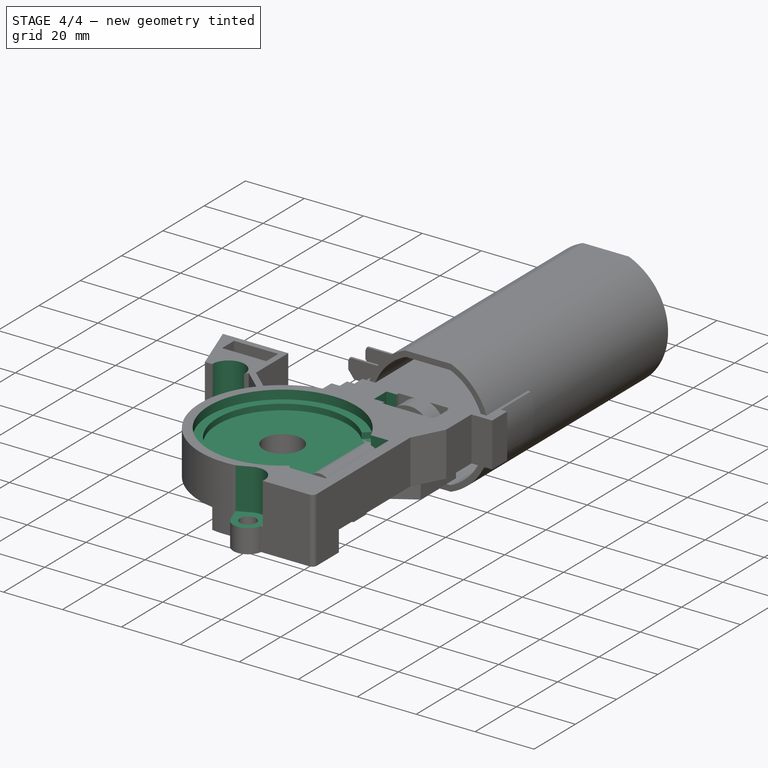
[diagram: stage 4 of 4 — iso view after this stage's code; geometry added in this stage tinted green]
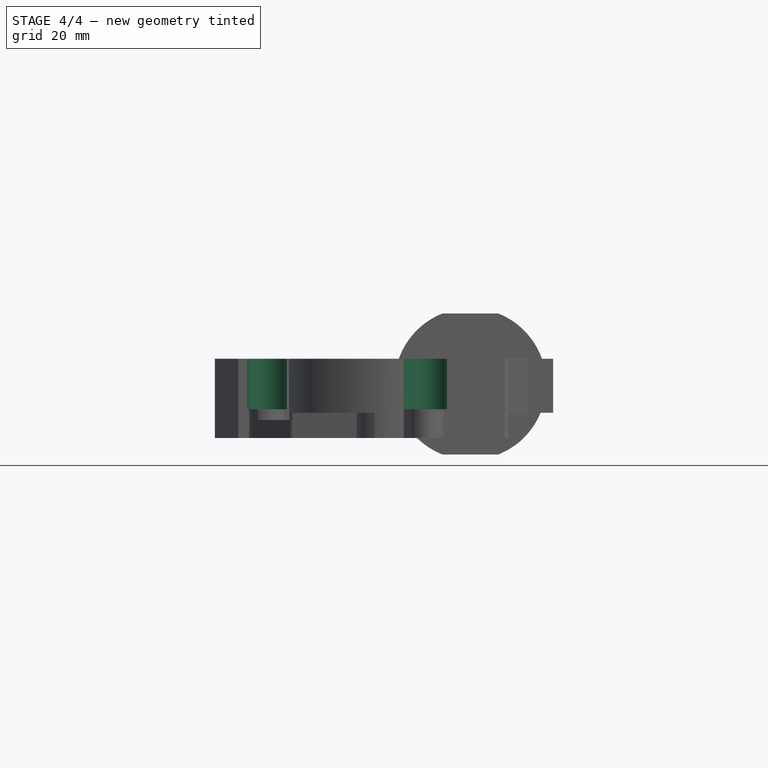
[diagram: stage 4 of 4 — front view after this stage's code; geometry added in this stage tinted green]
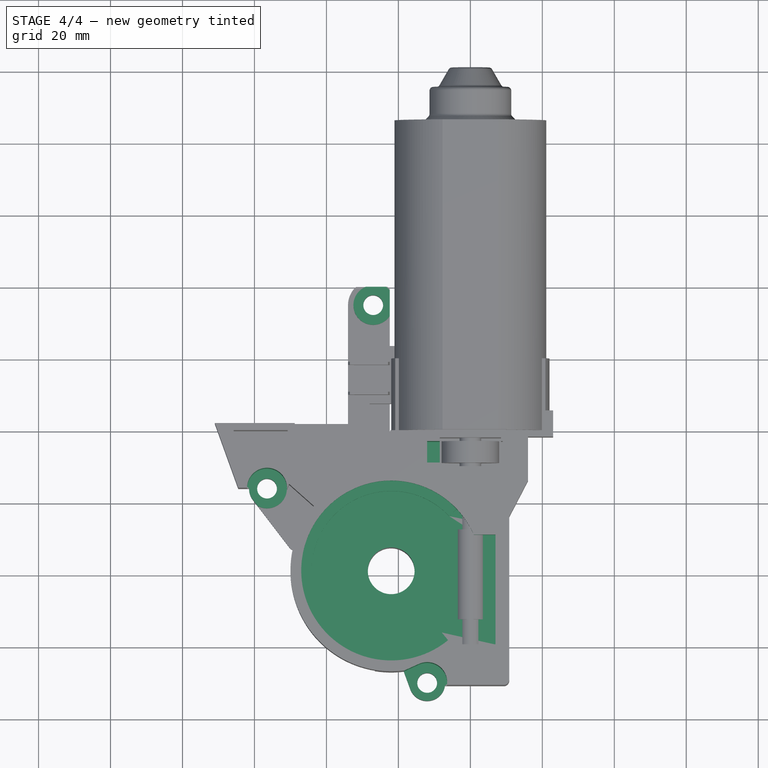
[diagram: stage 4 of 4 — top view after this stage's code; geometry added in this stage tinted green]
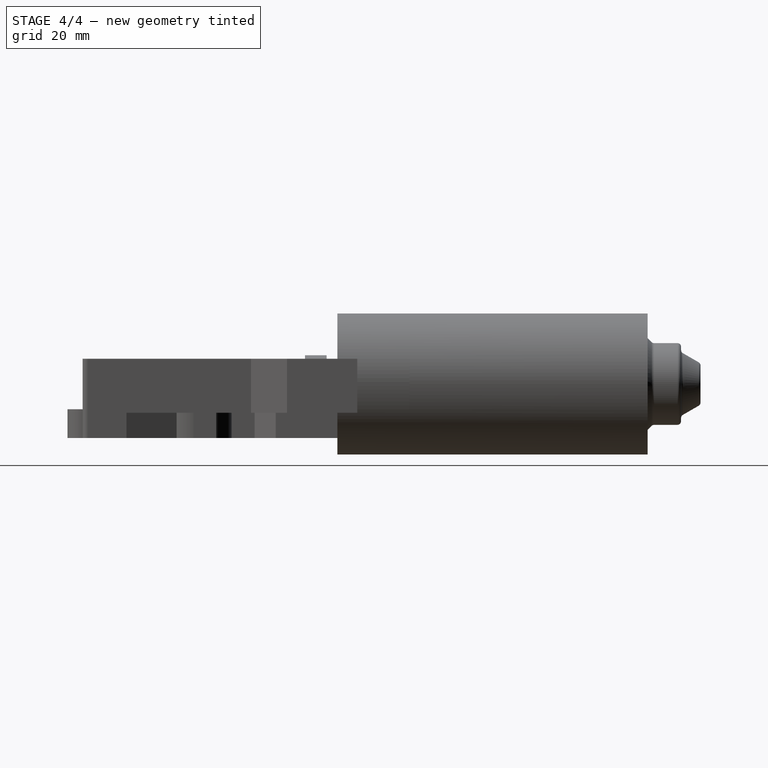
[diagram: stage 4 of 4 — right view after this stage's code; geometry added in this stage tinted green]
FEATURE [Sketcher::SketchObject] Sketch008
  AttachmentOffset = pos=(0,0,-7) rot=(0,0,1;0rad)
  ExternalGeometry = -> [Pocket001]
  FullyConstrained = false
  MapMode = 5
  Placement = pos=(0,0,-7) rot=(0,0,1;0rad)
  Support = -> [XY_Plane001]
  sketch-geometry (9):
    g0: Circle CenterX=-27 CenterY=35 CenterZ=0 NormalX=0 NormalY=0 NormalZ=1 AngleXU=0 Radius=8.44726
    g1: Circle CenterX=-56.5 CenterY=-16 CenterZ=0 NormalX=0 NormalY=0 NormalZ=1 AngleXU=0 Radius=5.55
    g2: ArcOfCircle CenterX=-12 CenterY=-70 CenterZ=0 NormalX=0 NormalY=0 NormalZ=1 AngleXU=0 Radius=5.55 StartAngle=3.7055 EndAngle=8.27699
    g3: LineSegment StartX=-14.2783 StartY=-64.9392 StartZ=0 EndX=-19.9547 EndY=-67.4946 EndZ=0
    g4: LineSegment StartX=-19.9547 StartY=-67.4946 StartZ=0 EndX=-16.6907 EndY=-72.9664 EndZ=0
    g5: LineSegment StartX=-12 StartY=-3 StartZ=0 EndX=9 EndY=-3 EndZ=0
    g6: LineSegment StartX=9 StartY=-3 StartZ=0 EndX=9 EndY=-9 EndZ=0
    g7: LineSegment StartX=9 StartY=-9 StartZ=0 EndX=-12 EndY=-9 EndZ=0
    g8: LineSegment StartX=-12 StartY=-9 StartZ=0 EndX=-12 EndY=-3 EndZ=0
  constraints (20):
    c: Coincident(g-5,g0)
    c: Coincident(g1,g-4)
    c: Diameter(g1) = 11.1
    c: Coincident(g2,g-3)
    c: Tangent(g2,g3) = -1.5708
    c: Coincident(g3,g4)
    c: Coincident(g4,g2)
    c: Equal(g2,g1)
    c: Coincident(g5,g6)
    c: Coincident(g6,g7)
    c: Coincident(g7,g8)
    c: Coincident(g8,g5)
    c: Horizontal(g5)
    c: Horizontal(g7)
    c: Vertical(g6)
    c: Vertical(g8)
    c: DistanceY(g6,g6) = 6
    c: DistanceX(g5,g5) = 21
    c: DistanceX(g5) = 9
    c: DistanceY(g5) = -3
FEATURE [PartDesign::Pocket] Pocket002  label="Mounting Bolts"
  BaseFeature = -> Pocket001
  Direction = (0,0,-1)
  Length = 5
  Length2 = 5
  Profile = -> Sketch008
  ReferenceAxis = -> Sketch008 [N_Axis]
  Reversed = true
  Type = 1
FEATURE [Sketcher::SketchObject] Sketch009
  AttachmentOffset = pos=(0,0,4) rot=(0,0,1;0rad)
  ExternalGeometry = -> [Pocket002]
  FullyConstrained = true
  MapMode = 5
  Placement = pos=(0,0,4) rot=(0,0,1;0rad)
  Support = -> [XY_Plane001]
  sketch-geometry (1):
    g0: Circle CenterX=-22 CenterY=-39 CenterZ=0 NormalX=0 NormalY=0 NormalZ=1 AngleXU=0 Radius=25
  constraints (2):
    c: Coincident(g0,g-3)
    c: Diameter(g0) = 50
FEATURE [PartDesign::Pocket] Pocket003  label="Worm Gear Lid"
  BaseFeature = -> Pocket002
  Direction = (0,0,-1)
  Length = 5
  Length2 = 5
  Profile = -> Sketch009
  ReferenceAxis = -> Sketch009 [N_Axis]
  Reversed = true
  Type = 1
FEATURE [Sketcher::SketchObject] Sketch010
  AttachmentOffset = pos=(0,0,2) rot=(0,0,1;0rad)
  ExternalGeometry = -> [Pocket003]
  FullyConstrained = false
  MapMode = 5
  Placement = pos=(0,0,2) rot=(0,0,1;0rad)
  Support = -> [XY_Plane001]
  sketch-geometry (7):
    g0: ArcOfCircle CenterX=-22 CenterY=-39 CenterZ=0 NormalX=0 NormalY=0 NormalZ=1 AngleXU=0 Radius=22.15 StartAngle=0.75521 EndAngle=5.39812
    g1: LineSegment StartX=-5.87198 StartY=-23.8175 StartZ=0 EndX=-3.79682 EndY=-21.864 EndZ=0
    g2: LineSegment StartX=0.912878 StartY=-29 StartZ=0 EndX=7 EndY=-29 EndZ=0
    g3: LineSegment StartX=7 StartY=-29 StartZ=0 EndX=7 EndY=-59.5 EndZ=0
    g4: LineSegment StartX=7 StartY=-59.5 StartZ=0 EndX=-5.22729 EndY=-59.5 EndZ=0
    g5: LineSegment StartX=-5.22729 StartY=-59.5 StartZ=0 EndX=-7.97379 EndY=-56.1432 EndZ=0
    g6: ArcOfCircle CenterX=-22 CenterY=-39 CenterZ=0 NormalX=0 NormalY=0 NormalZ=1 AngleXU=0 Radius=25 StartAngle=0.411517 EndAngle=0.75521
  constraints (19):
    c: Coincident(g0,g-3)
    c: Coincident(g0,g1)
    c: Horizontal(g2)
    c: Coincident(g2,g3)
    c: Vertical(g3)
    c: Coincident(g3,g4)
    c: Coincident(g4,g5)
    c: Coincident(g5,g0)
    c: Diameter(g0) = 44.3
    c: PointOnObject(g0,g5)
    c: PointOnObject(g0,g1)
    c: Horizontal(g4)
    c: DistanceX(g3) = 7
    c: DistanceY(g2) = -29
    c: Coincident(g6,g0)
    c: Coincident(g6,g1)
    c: Coincident(g6,g2)
    c: Diameter(g6) = 50
    c: DistanceY(g3,g3) = 30.5
FEATURE [PartDesign::Pocket] Pocket004  label="Worm Space"
  BaseFeature = -> Pocket003
  Direction = (0,0,-1)
  Length = 5
  Length2 = 5
  Profile = -> Sketch010
  ReferenceAxis = -> Sketch010 [N_Axis]
  Reversed = true
  Type = 1
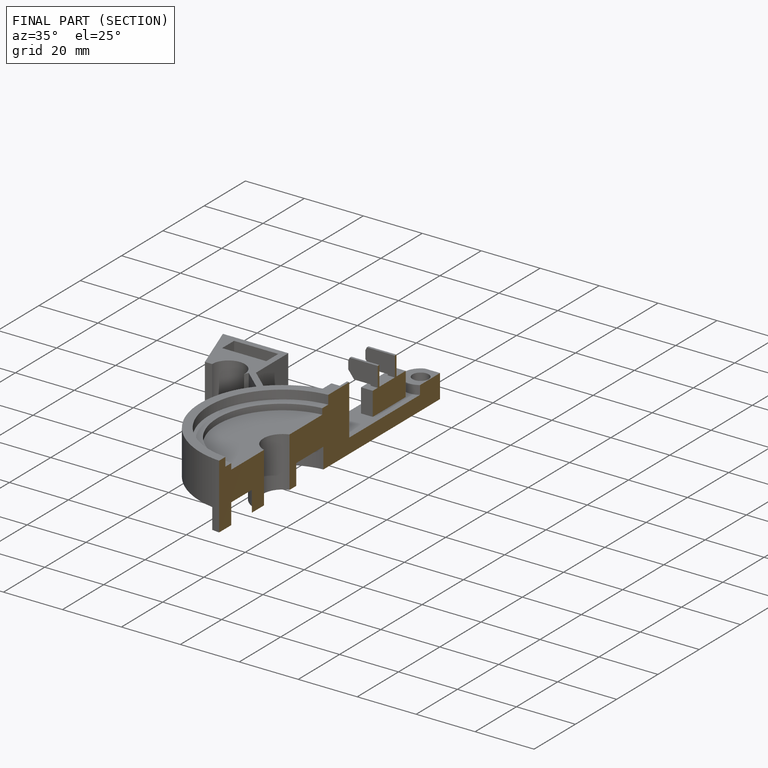
[diagram: finished part — half-section view (interior)]
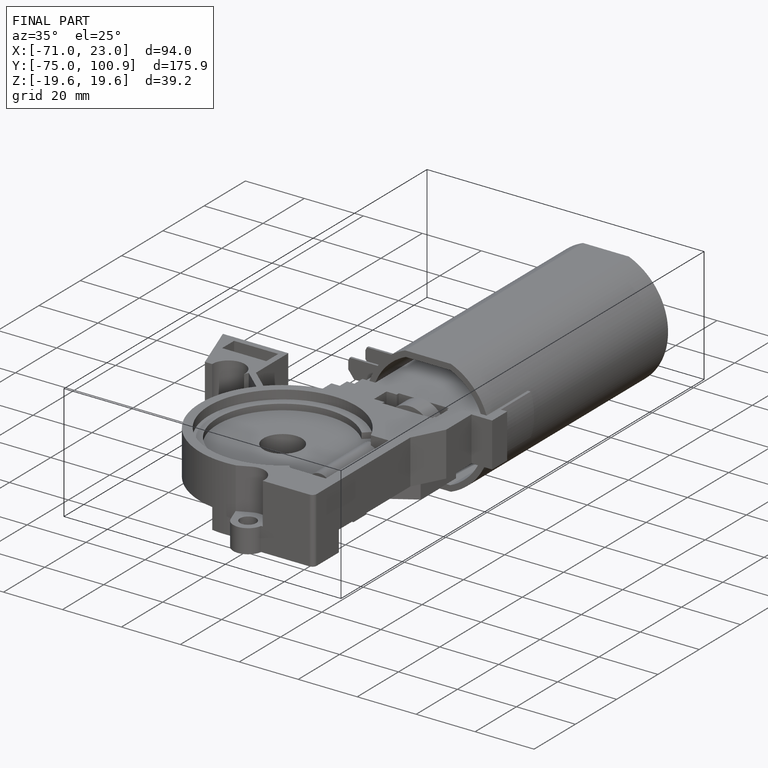
[diagram: finished part — iso view with bounding-box wireframe]
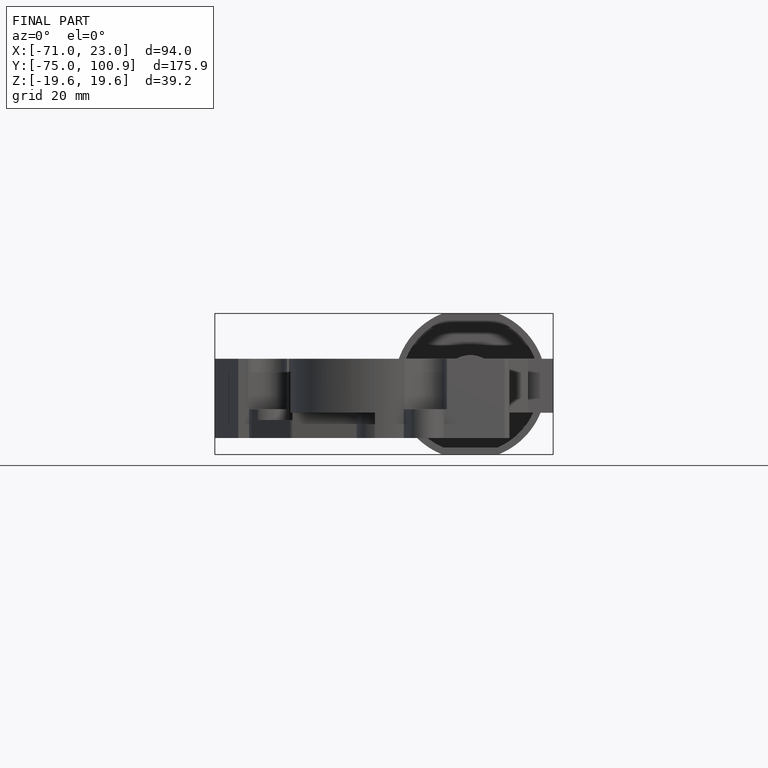
[diagram: finished part — front view with bounding-box wireframe]
